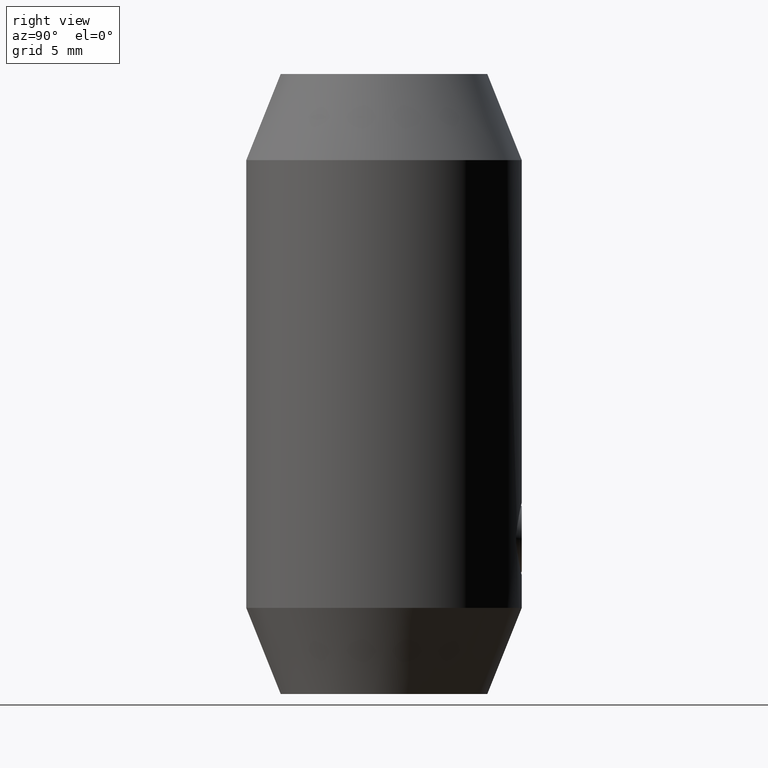
[diagram: clean part render]
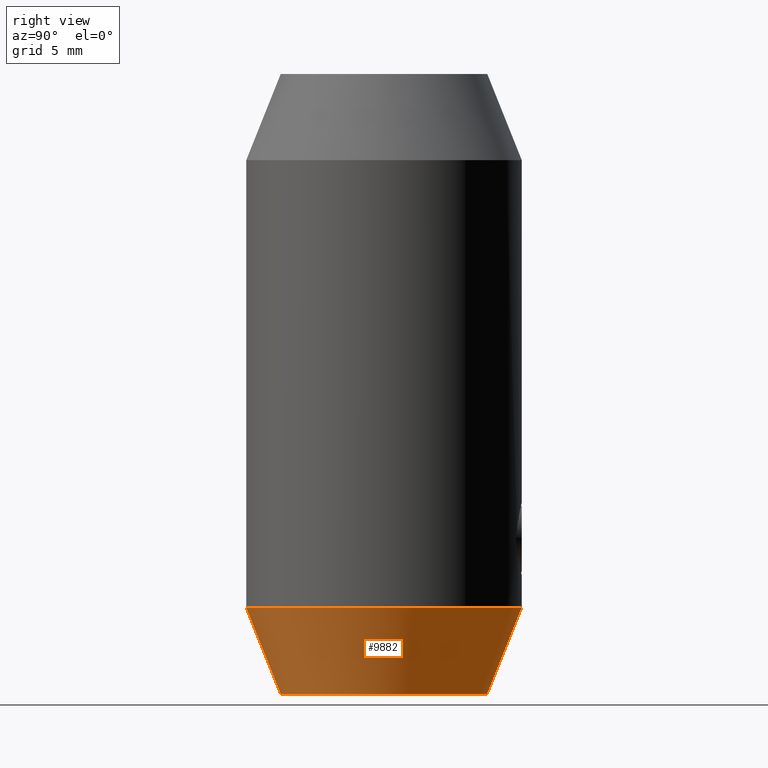
[diagram: same view with one face highlighted and labeled with its STEP entity id]
A machine part, right view. The second image highlights one B-rep face of the part: STEP entity #9882.
In plain terms, the highlighted conical surface has half-angle 21.801 deg.
Its self-contained STEP definition (entity closure, byte-faithful):
#139 = ORIENTED_EDGE ( 'NONE', *, *, #8357, .F. ) ;
#884 = CIRCLE ( 'NONE', #10124, 8.000000000000001776 ) ;
#1462 = VERTEX_POINT ( 'NONE', #6369 ) ;
#1514 = CARTESIAN_POINT ( 'NONE',  ( 7.347880794884119736E-16, 6.000000000000000000, -18.00000000000000000 ) ) ;
#1641 = AXIS2_PLACEMENT_3D ( 'NONE', #1924, #11371, #11457 ) ;
#1924 = CARTESIAN_POINT ( 'NONE',  ( 0.000000000000000000, 3.851859888774471706E-31, -18.00000000000000000 ) ) ;
#2338 = CIRCLE ( 'NONE', #1641, 6.000000000000000000 ) ;
#2683 = DIRECTION ( 'NONE',  ( 4.548224030302242039E-17, 0.3713906763541041656, 0.9284766908852591927 ) ) ;
#2725 = CONICAL_SURFACE ( 'NONE', #10237, 6.000000000000000000, 0.3805063771123653460 ) ;
#2917 = VECTOR ( 'NONE', #10981, 1000.000000000000114 ) ;
#3880 = EDGE_CURVE ( 'NONE', #10495, #1462, #884, .T. ) ;
#4448 = EDGE_CURVE ( 'NONE', #10484, #1462, #11414, .T. ) ;
#4603 = CARTESIAN_POINT ( 'NONE',  ( 8.572527594031473190E-16, 6.000000000000000000, -18.00000000000000000 ) ) ;
#5510 = ORIENTED_EDGE ( 'NONE', *, *, #4448, .T. ) ;
#6172 = DIRECTION ( 'NONE',  ( -0.000000000000000000, -2.139922160430262120E-32, 1.000000000000000000 ) ) ;
#6305 = CARTESIAN_POINT ( 'NONE',  ( 0.000000000000000000, 2.781898808559340920E-31, -13.00000000000000178 ) ) ;
#6369 = CARTESIAN_POINT ( 'NONE',  ( 9.797174393178827630E-16, 8.000000000000001776, -13.00000000000000178 ) ) ;
#6490 = ORIENTED_EDGE ( 'NONE', *, *, #3880, .F. ) ;
#6871 = CARTESIAN_POINT ( 'NONE',  ( 0.000000000000000000, -8.000000000000001776, -13.00000000000000178 ) ) ;
#7622 = LINE ( 'NONE', #8854, #2917 ) ;
#8357 = EDGE_CURVE ( 'NONE', #9714, #10495, #7622, .T. ) ;
#8854 = CARTESIAN_POINT ( 'NONE',  ( 0.000000000000000000, -6.000000000000000000, -18.00000000000000000 ) ) ;
#9068 = EDGE_LOOP ( 'NONE', ( #12073, #5510, #6490, #139 ) ) ;
#9319 = CARTESIAN_POINT ( 'NONE',  ( 0.000000000000000000, 3.851859888774471706E-31, -18.00000000000000000 ) ) ;
#9385 = DIRECTION ( 'NONE',  ( 0.000000000000000000, -1.000000000000000000, 0.000000000000000000 ) ) ;
#9714 = VERTEX_POINT ( 'NONE', #10235 ) ;
#9882 = ADVANCED_FACE ( 'NONE', ( #10913 ), #2725, .T. ) ;
#10124 = AXIS2_PLACEMENT_3D ( 'NONE', #6305, #6172, #10475 ) ;
#10235 = CARTESIAN_POINT ( 'NONE',  ( 0.000000000000000000, -6.000000000000000000, -18.00000000000000000 ) ) ;
#10237 = AXIS2_PLACEMENT_3D ( 'NONE', #9319, #12460, #9385 ) ;
#10475 = DIRECTION ( 'NONE',  ( 0.000000000000000000, -1.000000000000000000, 0.000000000000000000 ) ) ;
#10484 = VERTEX_POINT ( 'NONE', #4603 ) ;
#10495 = VERTEX_POINT ( 'NONE', #6871 ) ;
#10913 = FACE_OUTER_BOUND ( 'NONE', #9068, .T. ) ;
#10981 = DIRECTION ( 'NONE',  ( 0.000000000000000000, -0.3713906763541041656, 0.9284766908852591927 ) ) ;
#11371 = DIRECTION ( 'NONE',  ( -0.000000000000000000, -2.139922160430262120E-32, 1.000000000000000000 ) ) ;
#11414 = LINE ( 'NONE', #1514, #13602 ) ;
#11457 = DIRECTION ( 'NONE',  ( 0.000000000000000000, -1.000000000000000000, 0.000000000000000000 ) ) ;
#12073 = ORIENTED_EDGE ( 'NONE', *, *, #12994, .T. ) ;
#12460 = DIRECTION ( 'NONE',  ( -0.000000000000000000, -2.139922160430262120E-32, 1.000000000000000000 ) ) ;
#12994 = EDGE_CURVE ( 'NONE', #9714, #10484, #2338, .T. ) ;
#13602 = VECTOR ( 'NONE', #2683, 1000.000000000000114 ) ;